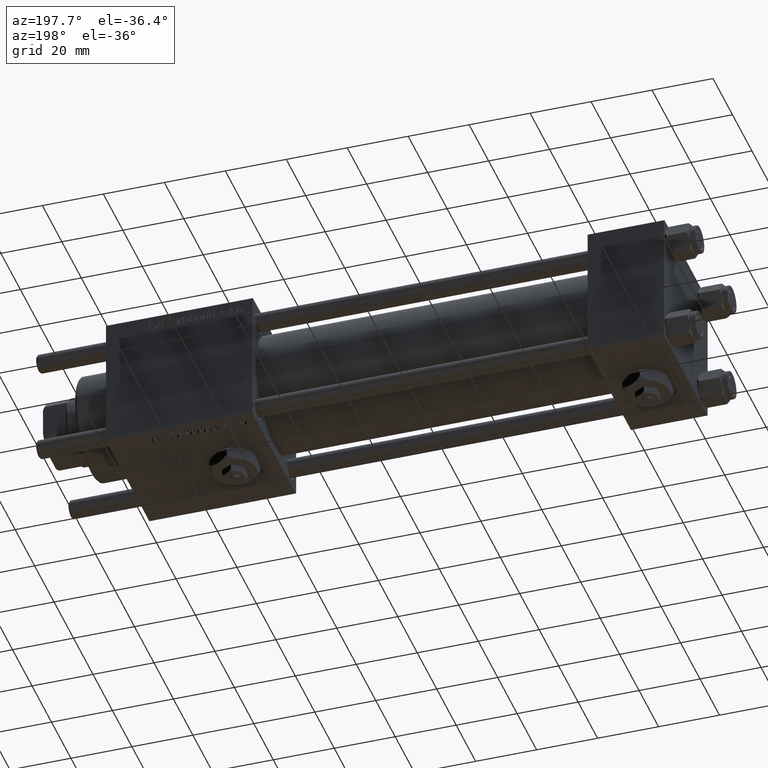
[diagram: clean part render]
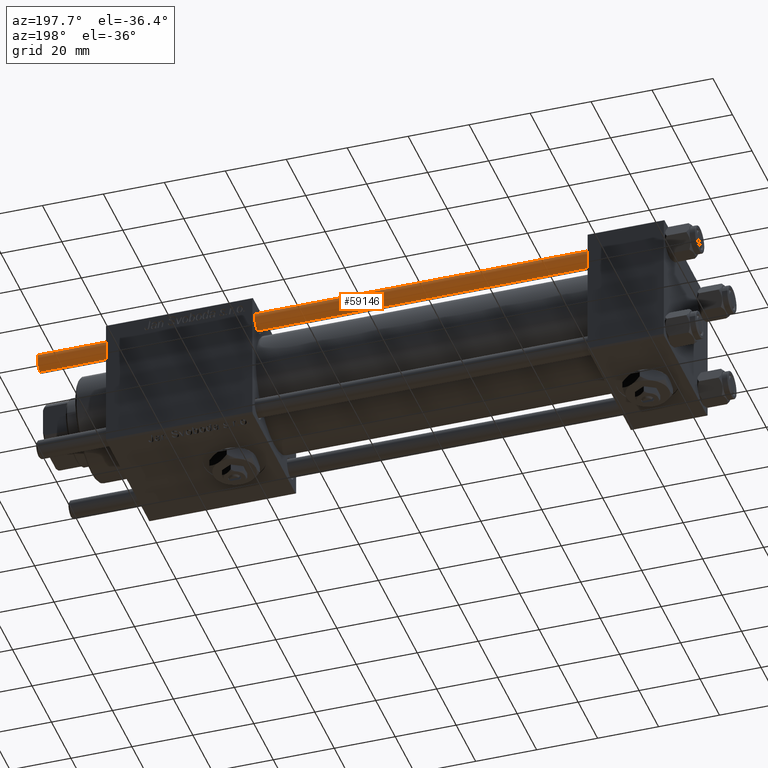
[diagram: same view with one face highlighted and labeled with its STEP entity id]
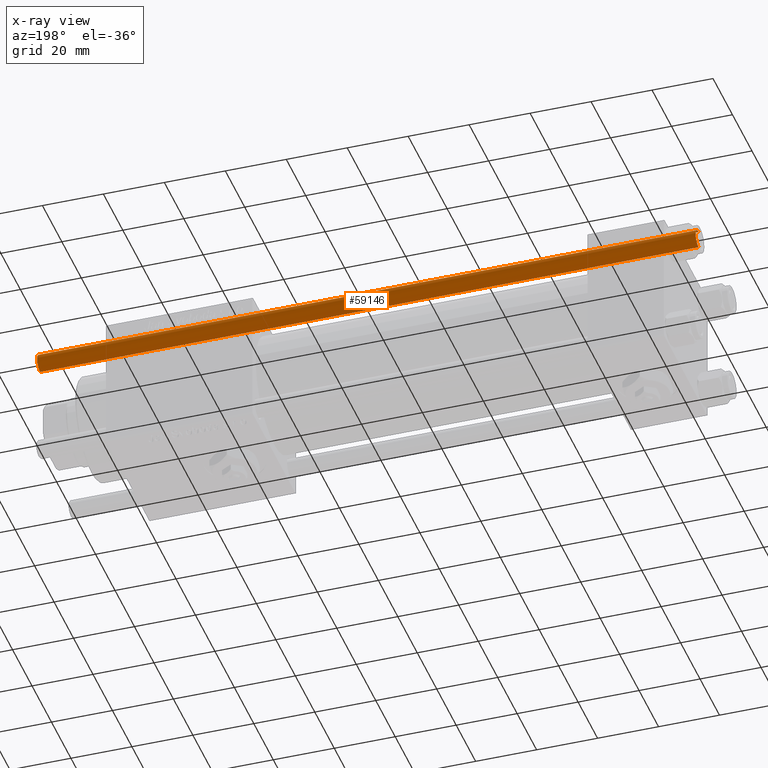
[diagram: x-ray of the same camera — body ghosted, the highlighted face saturated]
A machine part, auxiliary view. The second image highlights one B-rep face of the part: STEP entity #59146.
The next image is the same camera in x-ray: the body ghosted, the highlighted face saturated — about 0% of this face is hidden behind the body in this view.
In plain terms, the highlighted cylindrical surface (edge-blend (fillet) strip) has radius 3 mm, axis along (1, -0, -0).
Its self-contained STEP definition (entity closure, byte-faithful):
#2080 = FACE_OUTER_BOUND ( 'NONE', #52514, .T. ) ;
#2161 = VERTEX_POINT ( 'NONE', #51672 ) ;
#3971 = AXIS2_PLACEMENT_3D ( 'NONE', #27372, #17947, #45289 ) ;
#5392 = AXIS2_PLACEMENT_3D ( 'NONE', #30610, #53658, #7804 ) ;
#7438 = VERTEX_POINT ( 'NONE', #40115 ) ;
#7758 = LINE ( 'NONE', #40247, #48769 ) ;
#7804 = DIRECTION ( 'NONE',  ( -1.000000000000000000, 0.000000000000000000, 0.000000000000000000 ) ) ;
#8805 = CIRCLE ( 'NONE', #3971, 3.000000000000000444 ) ;
#10009 = CARTESIAN_POINT ( 'NONE',  ( -3.000000000000000444, 0.000000000000000000, 217.0000000000000000 ) ) ;
#12065 = CYLINDRICAL_SURFACE ( 'NONE', #5392, 3.000000000000000444 ) ;
#17947 = DIRECTION ( 'NONE',  ( -0.000000000000000000, -0.000000000000000000, 1.000000000000000000 ) ) ;
#18322 = ORIENTED_EDGE ( 'NONE', *, *, #25150, .T. ) ;
#18807 = DIRECTION ( 'NONE',  ( -0.000000000000000000, -0.000000000000000000, -1.000000000000000000 ) ) ;
#23369 = CIRCLE ( 'NONE', #29233, 3.000000000000000444 ) ;
#23980 = LINE ( 'NONE', #10009, #29113 ) ;
#25150 = EDGE_CURVE ( 'NONE', #2161, #28211, #7758, .T. ) ;
#26240 = DIRECTION ( 'NONE',  ( 0.000000000000000000, 0.000000000000000000, -1.000000000000000000 ) ) ;
#27372 = CARTESIAN_POINT ( 'NONE',  ( 0.000000000000000000, 0.000000000000000000, 0.5000000000000559552 ) ) ;
#27401 = ORIENTED_EDGE ( 'NONE', *, *, #34251, .F. ) ;
#28211 = VERTEX_POINT ( 'NONE', #45556 ) ;
#29113 = VECTOR ( 'NONE', #18807, 1000.000000000000000 ) ;
#29233 = AXIS2_PLACEMENT_3D ( 'NONE', #48708, #26240, #57805 ) ;
#29356 = ORIENTED_EDGE ( 'NONE', *, *, #42031, .T. ) ;
#30610 = CARTESIAN_POINT ( 'NONE',  ( 0.000000000000000000, 0.000000000000000000, 217.0000000000000000 ) ) ;
#34251 = EDGE_CURVE ( 'NONE', #7438, #55005, #23980, .T. ) ;
#37101 = EDGE_CURVE ( 'NONE', #28211, #55005, #8805, .T. ) ;
#40115 = CARTESIAN_POINT ( 'NONE',  ( -3.000000000000000444, 0.000000000000000000, 216.5000000000000000 ) ) ;
#40247 = CARTESIAN_POINT ( 'NONE',  ( 3.000000000000000444, 3.673940397442060361E-16, 217.0000000000000000 ) ) ;
#42031 = EDGE_CURVE ( 'NONE', #7438, #2161, #23369, .T. ) ;
#45289 = DIRECTION ( 'NONE',  ( 1.000000000000000000, 0.000000000000000000, 0.000000000000000000 ) ) ;
#45410 = DIRECTION ( 'NONE',  ( -0.000000000000000000, -0.000000000000000000, -1.000000000000000000 ) ) ;
#45556 = CARTESIAN_POINT ( 'NONE',  ( 3.000000000000000444, 3.673940397442060361E-16, 0.5000000000000559552 ) ) ;
#48708 = CARTESIAN_POINT ( 'NONE',  ( 0.000000000000000000, 0.000000000000000000, 216.5000000000000000 ) ) ;
#48769 = VECTOR ( 'NONE', #45410, 1000.000000000000000 ) ;
#51672 = CARTESIAN_POINT ( 'NONE',  ( 3.000000000000000444, 3.673940397442060361E-16, 216.5000000000000000 ) ) ;
#52514 = EDGE_LOOP ( 'NONE', ( #29356, #18322, #55893, #27401 ) ) ;
#53658 = DIRECTION ( 'NONE',  ( -0.000000000000000000, -0.000000000000000000, -1.000000000000000000 ) ) ;
#55005 = VERTEX_POINT ( 'NONE', #58885 ) ;
#55893 = ORIENTED_EDGE ( 'NONE', *, *, #37101, .T. ) ;
#57805 = DIRECTION ( 'NONE',  ( 1.000000000000000000, 0.000000000000000000, 0.000000000000000000 ) ) ;
#58885 = CARTESIAN_POINT ( 'NONE',  ( -3.000000000000000444, 0.000000000000000000, 0.5000000000000559552 ) ) ;
#59146 = ADVANCED_FACE ( 'NONE', ( #2080 ), #12065, .T. ) ;